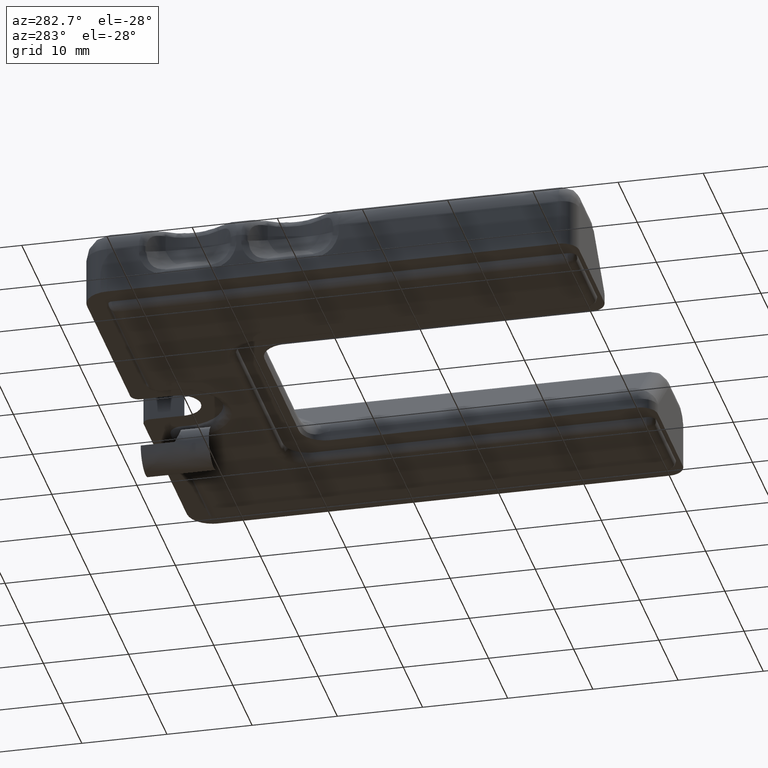
[diagram: clean part render]
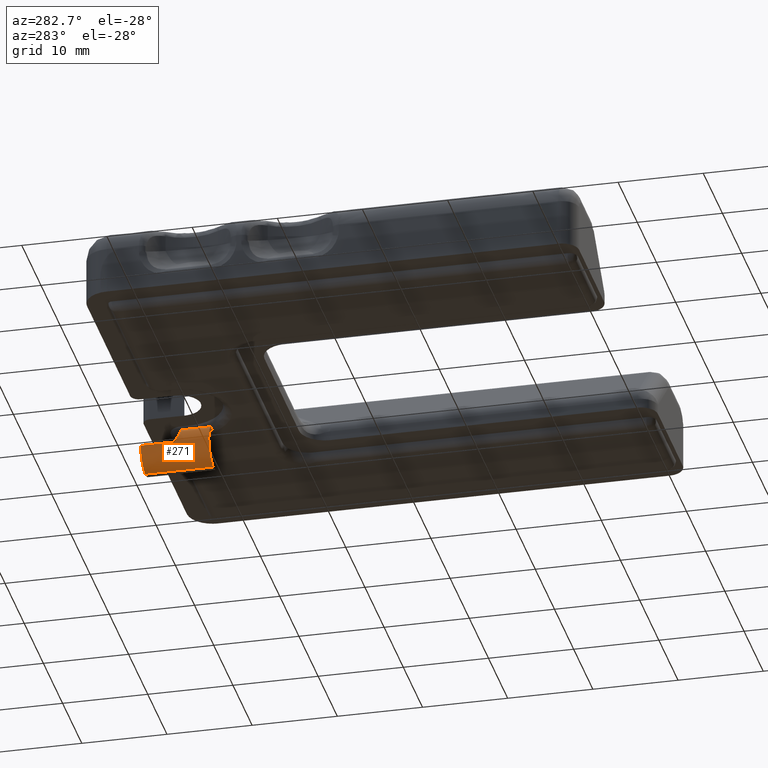
[diagram: same view with one face highlighted and labeled with its STEP entity id]
A machine part, auxiliary view. The second image highlights one B-rep face of the part: STEP entity #271.
In plain terms, the highlighted face is a freeform B-spline surface patch.
Its self-contained STEP definition (entity closure, byte-faithful):
#23=CARTESIAN_POINT('',(0.152620525335439,-5.499999999999359,-2.504662953490283));
#24=VERTEX_POINT('',#23);
#40=CARTESIAN_POINT('',(0.152621419306911,-8.793724905965593,-2.504661839197135));
#41=VERTEX_POINT('',#40);
#42=CARTESIAN_POINT('',(0.152620525335439,-5.499999999999359,-2.504662953490283));
#43=CARTESIAN_POINT('',(0.152621419306911,-8.793724905965593,-2.504661839197135));
#44=QUASI_UNIFORM_CURVE('',1,(#42,#43),.UNSPECIFIED.,.F.,.U.);
#45=EDGE_CURVE('',#24,#41,#44,.T.);
#72=CARTESIAN_POINT('',(-0.152623272017642,-9.000000000004558,-7.495336878338621));
#73=VERTEX_POINT('',#72);
#89=CARTESIAN_POINT('',(-0.152621349761563,-1.000000000000000,-7.495336995910291));
#90=VERTEX_POINT('',#89);
#91=CARTESIAN_POINT('',(-0.152621349761563,-1.000000000000000,-7.495336995910291));
#92=CARTESIAN_POINT('',(-0.152623272017642,-9.000000000004558,-7.495336878338621));
#93=QUASI_UNIFORM_CURVE('',1,(#91,#92),.UNSPECIFIED.,.F.,.U.);
#94=EDGE_CURVE('',#90,#73,#93,.T.);
#148=CARTESIAN_POINT('',(0.152621348057385,-0.799999999999886,-2.504663003809840));
#149=CARTESIAN_POINT('',(-2.342715647997285,-0.799999999999886,-2.352041654972749));
#150=CARTESIAN_POINT('',(-2.495336996834377,-0.799999999999886,-4.847378651027419));
#151=CARTESIAN_POINT('',(-2.647958345671468,-0.799999999999886,-7.342715647082088));
#152=CARTESIAN_POINT('',(-0.152621349616798,-0.799999999999886,-7.495336995919180));
#153=CARTESIAN_POINT('',(0.152621348057385,-9.205000000004677,-2.504663003809840));
#154=CARTESIAN_POINT('',(-2.342715647997285,-9.205000000004679,-2.352041654972749));
#155=CARTESIAN_POINT('',(-2.495336996834377,-9.205000000004677,-4.847378651027419));
#156=CARTESIAN_POINT('',(-2.647958345671468,-9.205000000004679,-7.342715647082088));
#157=CARTESIAN_POINT('',(-0.152621349616798,-9.205000000004677,-7.495336995919180));
#165=(BOUNDED_SURFACE()B_SPLINE_SURFACE(2,1,((#148,#153),(#149,#154),(#150,#155),(#151,#156),(#152,#157)),.UNSPECIFIED.,.F.,.F.,.U.)B_SPLINE_SURFACE_WITH_KNOTS((3,2,3),(2,2),(0.0,4.142135623730949,8.284271247461899),(0.0,8.405000000004794),.UNSPECIFIED.)GEOMETRIC_REPRESENTATION_ITEM()RATIONAL_B_SPLINE_SURFACE(((1.0,1.0),(0.707106781186548,0.707106781186548),(1.0,1.0),(0.707106781186548,0.707106781186548),(1.0,1.0)))REPRESENTATION_ITEM('')SURFACE());
#166=CARTESIAN_POINT('',(-2.000000000152810,-5.500000000000000,-3.499999999028650));
#167=VERTEX_POINT('',#166);
#168=CARTESIAN_POINT('',(-2.000000000152810,-5.500000000000000,-3.499999999028650));
#169=CARTESIAN_POINT('',(-1.249999999733070,-5.499999999999703,-2.499999999339742));
#170=CARTESIAN_POINT('',(2.699477E-010,-5.499999999999397,-2.499999999864639));
#171=CARTESIAN_POINT('',(0.076381495476695,-5.499999999999377,-2.499999999896712));
#172=CARTESIAN_POINT('',(0.152620525335439,-5.499999999999359,-2.504662953490283));
#180=(BOUNDED_CURVE()B_SPLINE_CURVE(2,(#168,#169,#170,#171,#172),.UNSPECIFIED.,.F.,.U.)B_SPLINE_CURVE_WITH_KNOTS((3,2,3),(0.0,0.500000000000000,0.533914237004507),.UNSPECIFIED.)CURVE()GEOMETRIC_REPRESENTATION_ITEM()RATIONAL_B_SPLINE_CURVE((1.0,0.894427190999483,1.0,0.992839157468650,0.986649732980341))REPRESENTATION_ITEM(''));
#181=EDGE_CURVE('',#167,#24,#180,.T.);
#182=ORIENTED_EDGE('',*,*,#181,.F.);
#183=CARTESIAN_POINT('',(-2.500000000152810,-5.0,-4.999999999864510));
#184=VERTEX_POINT('',#183);
#185=CARTESIAN_POINT('',(-2.500000000152810,-5.0,-4.999999999864510));
#186=CARTESIAN_POINT('',(-2.500000000466259,-5.014398227696177,-4.967803770331321));
#187=CARTESIAN_POINT('',(-2.499371607874123,-5.028943677995605,-4.935279963947015));
#188=CARTESIAN_POINT('',(-2.496859121323603,-5.057799245699845,-4.870610488869011));
#189=CARTESIAN_POINT('',(-2.494975807584093,-5.072179637822993,-4.838308612253527));
#190=CARTESIAN_POINT('',(-2.487439110674082,-5.115095237811916,-4.741465282593001));
#191=CARTESIAN_POINT('',(-2.479904133860043,-5.143407381211627,-4.676986794367108));
#192=CARTESIAN_POINT('',(-2.459665557192467,-5.198950320951464,-4.547996249004681));
#193=CARTESIAN_POINT('',(-2.446990194617377,-5.226070003985326,-4.483737184393010));
#194=CARTESIAN_POINT('',(-2.416607108088994,-5.278112204454329,-4.356339847083153));
#195=CARTESIAN_POINT('',(-2.398881505704738,-5.303092524544718,-4.293076145634970));
#196=CARTESIAN_POINT('',(-2.358150680551475,-5.350285061109145,-4.167234017224683));
#197=CARTESIAN_POINT('',(-2.335147937884524,-5.372503167123518,-4.104656959356406));
#198=CARTESIAN_POINT('',(-2.296366779968647,-5.403035258063497,-4.011142893137149));
#199=CARTESIAN_POINT('',(-2.282725011770730,-5.412744116574973,-3.980029749759508));
#200=CARTESIAN_POINT('',(-2.253929825336245,-5.431057747690395,-3.917884879889855));
#201=CARTESIAN_POINT('',(-2.238731582013634,-5.439682211192374,-3.886770719323659));
#202=CARTESIAN_POINT('',(-2.191205171617864,-5.463350237370426,-3.794423791256087));
#203=CARTESIAN_POINT('',(-2.156892426739073,-5.476280765108128,-3.734019209236509));
#204=CARTESIAN_POINT('',(-2.082734587912614,-5.494584258463940,-3.615402968609462));
#205=CARTESIAN_POINT('',(-2.042895721849228,-5.500000000000002,-3.557194294574075));
#206=CARTESIAN_POINT('',(-2.000000000152810,-5.500000000000000,-3.499999999028650));
#207=B_SPLINE_CURVE_WITH_KNOTS('',3,(#185,#186,#187,#188,#189,#190,#191,#192,#193,#194,#195,#196,#197,#198,#199,#200,#201,#202,#203,#204,#205,#206),.UNSPECIFIED.,.F.,.U.,(4,2,2,2,2,2,2,2,2,2,4),(0.0,0.062500000000001,0.125000000000001,0.250000000000001,0.375000000000002,0.500000000000002,0.625000000000002,0.687500000000002,0.750000000000002,0.875000000000001,1.0),.UNSPECIFIED.);
#208=EDGE_CURVE('',#184,#167,#207,.T.);
#209=ORIENTED_EDGE('',*,*,#208,.F.);
#210=CARTESIAN_POINT('',(-2.500000000152810,-1.0,-4.999999999864560));
#211=VERTEX_POINT('',#210);
#212=CARTESIAN_POINT('',(-2.500000000152810,-1.0,-4.999999999864560));
#213=CARTESIAN_POINT('',(-2.500000000152810,-5.0,-4.999999999864510));
#214=QUASI_UNIFORM_CURVE('',1,(#212,#213),.UNSPECIFIED.,.F.,.U.);
#215=EDGE_CURVE('',#211,#184,#214,.T.);
#216=ORIENTED_EDGE('',*,*,#215,.F.);
#217=CARTESIAN_POINT('',(-2.500000000152810,-1.0,-4.999999999864560));
#218=CARTESIAN_POINT('',(-2.500000000742536,-1.0,-7.351765166991007));
#219=CARTESIAN_POINT('',(-0.152621349761561,-1.0,-7.495336995910257));
#227=(BOUNDED_CURVE()B_SPLINE_CURVE(2,(#217,#218,#219),.UNSPECIFIED.,.F.,.U.)B_SPLINE_CURVE_WITH_KNOTS((3,3),(0.0,0.478665924463762),.UNSPECIFIED.)CURVE()GEOMETRIC_REPRESENTATION_ITEM()RATIONAL_B_SPLINE_CURVE((1.0,0.719603993294984,0.976072041651583))REPRESENTATION_ITEM(''));
#228=EDGE_CURVE('',#211,#90,#227,.T.);
#229=ORIENTED_EDGE('',*,*,#228,.T.);
#230=ORIENTED_EDGE('',*,*,#94,.T.);
#231=CARTESIAN_POINT('',(-1.863389982130610,-9.000000000004549,-3.333333333310855));
#232=VERTEX_POINT('',#231);
#233=CARTESIAN_POINT('',(-1.863389982130610,-9.000000000004549,-3.333333333310855));
#234=CARTESIAN_POINT('',(-3.469320626168568,-9.000000000004551,-5.128818377139283));
#235=CARTESIAN_POINT('',(-1.734660313474101,-9.000000000004555,-6.800264869143732));
#236=CARTESIAN_POINT('',(-1.071636626717733,-9.000000000004556,-7.439126902957949));
#237=CARTESIAN_POINT('',(-0.152623272017642,-9.000000000004558,-7.495336878338622));
#245=(BOUNDED_CURVE()B_SPLINE_CURVE(2,(#233,#234,#235,#236,#237),.UNSPECIFIED.,.F.,.U.)B_SPLINE_CURVE_WITH_KNOTS((3,2,3),(0.0,0.333333333333333,0.487376334172043),.UNSPECIFIED.)CURVE()GEOMETRIC_REPRESENTATION_ITEM()RATIONAL_B_SPLINE_CURVE((1.0,0.720105947711901,1.0,0.870652840805904,0.860855828925132))REPRESENTATION_ITEM(''));
#246=EDGE_CURVE('',#232,#73,#245,.T.);
#247=ORIENTED_EDGE('',*,*,#246,.F.);
#248=CARTESIAN_POINT('',(0.152621419306911,-8.793724905965593,-2.504661839197135));
#249=CARTESIAN_POINT('',(0.101170762647029,-8.792088626650566,-2.501514317700539));
#250=CARTESIAN_POINT('',(-0.037782113684890,-8.789878695565305,-2.497337773635799));
#251=CARTESIAN_POINT('',(-0.176332928477043,-8.793766062310072,-2.504688116323347));
#252=CARTESIAN_POINT('',(-0.307051559333329,-8.800877974067243,-2.518541829817002));
#253=CARTESIAN_POINT('',(-0.350584759056820,-8.803818467034240,-2.524313079267711));
#254=CARTESIAN_POINT('',(-0.437571761625780,-8.810769301750455,-2.538198502268937));
#255=CARTESIAN_POINT('',(-0.481166058848174,-8.814794957630678,-2.546344564854414));
#256=CARTESIAN_POINT('',(-0.697041681653653,-8.837155676543134,-2.592651398798779));
#257=CARTESIAN_POINT('',(-0.862259960903076,-8.862113466485656,-2.646967983822536));
#258=CARTESIAN_POINT('',(-1.100416793658547,-8.901644375137005,-2.753526222877619));
#259=CARTESIAN_POINT('',(-1.178347138174785,-8.915185028290322,-2.793370842458459));
#260=CARTESIAN_POINT('',(-1.330316908598492,-8.941107428940178,-2.881516672680970));
#261=CARTESIAN_POINT('',(-1.403428816343318,-8.953322383180350,-2.929256706753207));
#262=CARTESIAN_POINT('',(-1.614564449574272,-8.985086934369379,-3.083350103955132));
#263=CARTESIAN_POINT('',(-1.744496520478517,-9.000000000004526,-3.200406481310033));
#264=CARTESIAN_POINT('',(-1.863389982130610,-9.000000000004549,-3.333333333310855));
#265=B_SPLINE_CURVE_WITH_KNOTS('',3,(#248,#249,#250,#251,#252,#253,#254,#255,#256,#257,#258,#259,#260,#261,#262,#263,#264),.UNSPECIFIED.,.F.,.U.,(4,1,2,2,2,2,2,2,4),(0.463313382230223,0.500000000000000,0.562500000000000,0.593750000000000,0.625000000000001,0.750000000000000,0.812500000000000,0.875000000000000,1.0),.UNSPECIFIED.);
#266=EDGE_CURVE('',#41,#232,#265,.T.);
#267=ORIENTED_EDGE('',*,*,#266,.F.);
#268=ORIENTED_EDGE('',*,*,#45,.F.);
#269=EDGE_LOOP('',(#182,#209,#216,#229,#230,#247,#267,#268));
#270=FACE_OUTER_BOUND('',#269,.T.);
#271=ADVANCED_FACE('',(#270),#165,.T.);